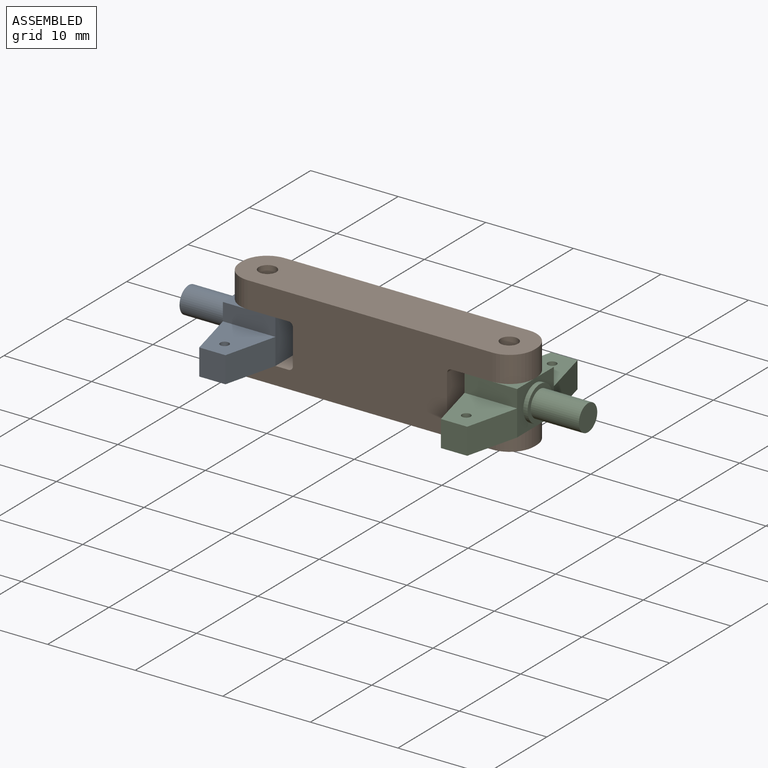
[diagram: assembled view]
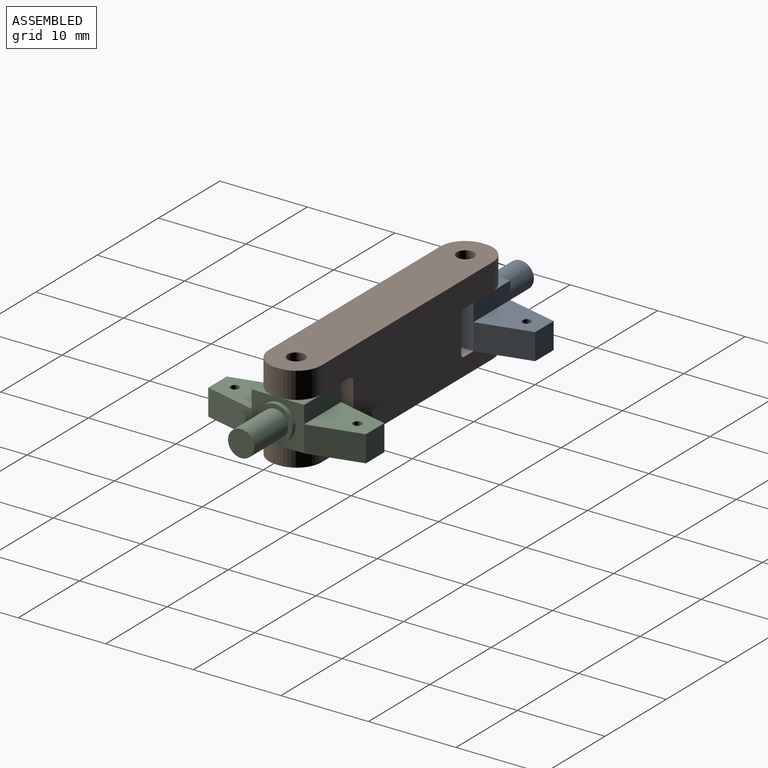
[diagram: assembled view, second angle]
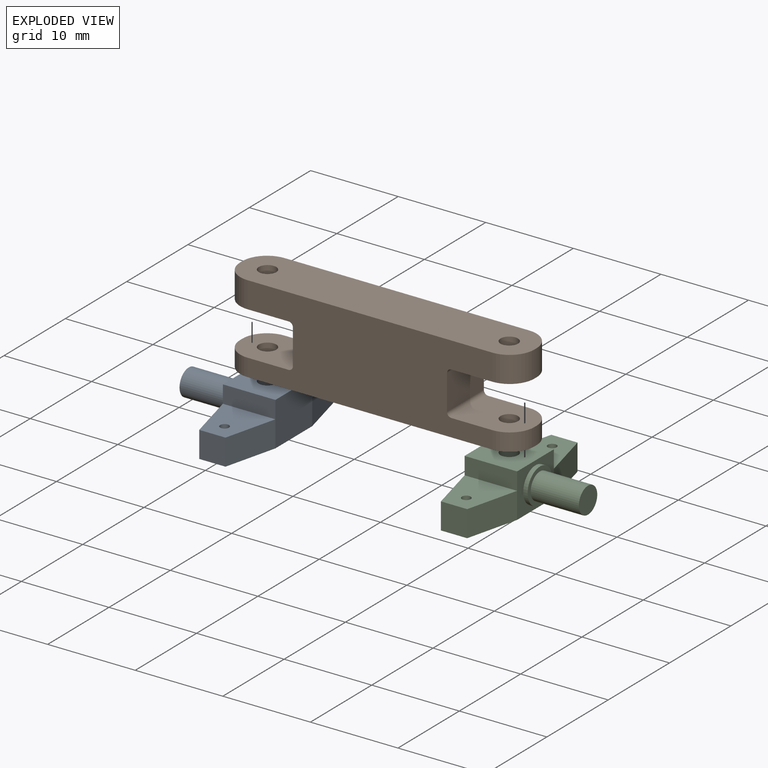
[diagram: exploded view]
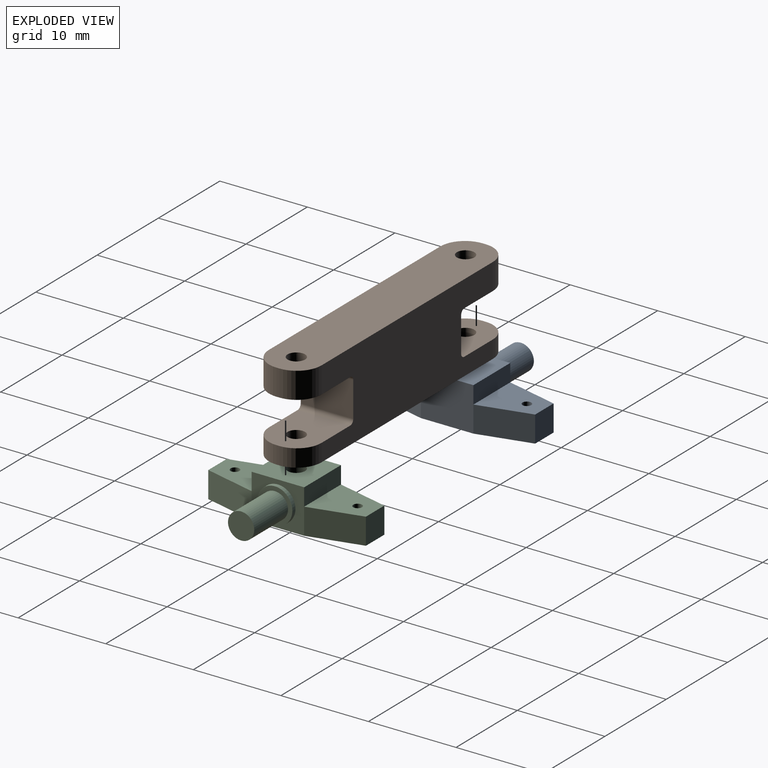
[diagram: exploded view, second angle]
ASSEMBLY  parts=3 mates=3
PART A: 21 faces, bbox 12x18x5 mm
  f0: plane 6x6mm, normal (0,0,1), area 26.2mm2, adj f6,f7,f8,f11,f16
  f1: plane 6x5mm, normal (-1,0,0), area 30mm2, adj f2,f8,f10,f11,f12,f13
  f2: plane 6x3mm, normal (-0.97,-0.24,0), area 18.6mm2, adj f1,f3,f9,f10
  f3: plane 3x3mm, normal (0,-1,0), area 9mm2, adj f2,f4,f9,f10
  f4: plane 6x3mm, normal (0.97,-0.24,0), area 18.6mm2, adj f3,f5,f9,f10
  f5: plane 6x5mm, normal (1,0,0), area 17.4mm2, adj f4,f6,f10,f11,f12,f13,f17
  f6: plane 6x3mm, normal (0.97,0.24,0), area 18.6mm2, adj f0,f5,f7,f10
  f7: plane 3x3mm, normal (0,1,0), area 9mm2, adj f0,f6,f8,f10
  f8: plane 6x3mm, normal (-0.97,0.24,0), area 18.6mm2, adj f0,f1,f7,f10
  f9: plane 6x6mm, normal (0,0,1), area 26.2mm2, adj f2,f3,f4,f12,f15
  f10: plane 18x6mm, normal (0,0,-1), area 85.3mm2, adj f1,f2,f3,f4,f5,f6,f7,f8
  f11: plane 6x2mm, normal (0,1,0), area 12mm2, adj f0,f1,f5,f13
  f12: plane 6x2mm, normal (0,-1,0), area 12mm2, adj f1,f5,f9,f13
  f13: plane 6x6mm, normal (0,0,1), area 32.9mm2, adj f1,f5,f11,f12,f14
  f14: cylinder r=1mm len=5mm, axis (0,0,-1), area 31.4mm2, adj f10,f13
  f15: cylinder r=0.5mm len=3mm, axis (0,0,-1), area 9.4mm2, adj f9,f10
  f16: cylinder r=0.5mm len=3mm, axis (0,0,-1), area 9.4mm2, adj f0,f10
  f17: cylinder r=2mm len=4mm, axis (-1,0,0), area 6.3mm2, adj f5,f18
  f18: plane 4x4mm, normal (1,0,0), area 5.5mm2, adj f17,f20
  f19: plane 3x3mm, normal (1,0,0), area 7.1mm2, adj f20
  f20: cylinder r=1.5mm len=5.5mm, axis (-1,0,0), area 51.8mm2, adj f18,f19
PART B: 30 faces, bbox 33.6x6x10 mm
  f0: plane 3x0.35mm, normal (-1,0,0), area 1mm2, adj f4,f6,f8,f10
  f1: cylinder r=2.83mm len=2.83mm, axis (0,0,-1), area 8.9mm2, adj f3,f5,f9,f11
  f2: cylinder r=2.83mm len=2.83mm, axis (0,0,-1), area 8.9mm2, adj f5,f7,f9,f11
  f3: plane 27.95x10mm, normal (0,1,0), area 227.9mm2, adj f1,f4,f8,f9,f10,f11,f12,f16
  f4: cylinder r=2.83mm len=3mm, axis (0,0,-1), area 13.3mm2, adj f0,f3,f8,f10
  f5: plane 2x0.35mm, normal (-1,0,0), area 0.7mm2, adj f1,f2,f9,f11
  f6: cylinder r=2.83mm len=3mm, axis (0,0,-1), area 13.3mm2, adj f0,f7,f8,f10
  f7: plane 27.95x10mm, normal (0,-1,0), area 227.9mm2, adj f2,f6,f8,f9,f10,f11,f12,f17
  f8: plane 33.6x6mm, normal (0,0,1), area 188.5mm2, adj f0,f3,f4,f6,f7,f14,f15,f18
  f9: plane 33.6x6mm, normal (0,0,-1), area 188.5mm2, adj f1,f2,f3,f5,f7,f13,f16,f17
  f10: plane 7.5x6mm, normal (0,0,-1), area 38.4mm2, adj f0,f3,f4,f6,f7,f14,f29
  f11: plane 7.5x6mm, normal (0,0,1), area 38.4mm2, adj f1,f2,f3,f5,f7,f13,f28
  f12: plane 6x4mm, normal (-1,0,0), area 24mm2, adj f3,f7,f28,f29
  f13: cylinder r=1mm len=2mm, axis (0,0,1), area 12.6mm2, adj f9,f11
  f14: cylinder r=1mm len=3mm, axis (0,0,1), area 18.8mm2, adj f8,f10
  f15: plane 3x0.35mm, normal (1,0,0), area 1mm2, adj f8,f18,f20,f21
  f16: cylinder r=2.83mm len=2.83mm, axis (0,0,-1), area 8.9mm2, adj f3,f9,f19,f22
  f17: cylinder r=2.83mm len=2.83mm, axis (0,0,-1), area 8.9mm2, adj f7,f9,f19,f22
  f18: cylinder r=2.83mm len=3mm, axis (0,0,-1), area 13.3mm2, adj f3,f8,f15,f21
  f19: plane 2x0.35mm, normal (1,0,0), area 0.7mm2, adj f9,f16,f17,f22
  f20: cylinder r=2.83mm len=3mm, axis (0,0,-1), area 13.3mm2, adj f7,f8,f15,f21
  f21: plane 7.5x6mm, normal (0,0,-1), area 38.4mm2, adj f3,f7,f15,f18,f20,f25,f27
  f22: plane 7.5x6mm, normal (0,0,1), area 38.4mm2, adj f3,f7,f16,f17,f19,f24,f26
  f23: plane 6x4mm, normal (1,0,0), area 24mm2, adj f3,f7,f26,f27
  f24: cylinder r=1mm len=2mm, axis (0,0,1), area 12.6mm2, adj f9,f22
  f25: cylinder r=1mm len=3mm, axis (0,0,1), area 18.8mm2, adj f8,f21
  f26: cylinder r=0.5mm len=6mm, axis (0,1,0), area 4.7mm2, adj f3,f7,f22,f23
  f27: cylinder r=0.5mm len=6mm, axis (0,-1,0), area 4.7mm2, adj f3,f7,f21,f23
  f28: cylinder r=0.5mm len=6mm, axis (0,1,0), area 4.7mm2, adj f3,f7,f11,f12
  f29: cylinder r=0.5mm len=6mm, axis (0,-1,0), area 4.7mm2, adj f3,f7,f10,f12
PART C: same geometry as A
PLACE A rot(axis=(0,0,1),180deg) t=(-59.5,9.43,-4.52)mm
PLACE B rot(axis=(0,0,1),180deg) t=(-43,3.01,-6.52)mm
PLACE C t=(-31.9,9.43,-4.52)mm
MATE planar B.f13 <-> C.f14  axis (0,0,1) through (-31.9,9.43,-4.52)mm
MATE planar A.f14 <-> B.f24  axis (0,0,-1) through (-59.5,9.43,-4.52)mm
MATE planar A.f14 <-> B.f24  axis (0,0,-1) through (-59.5,9.43,-4.52)mm
